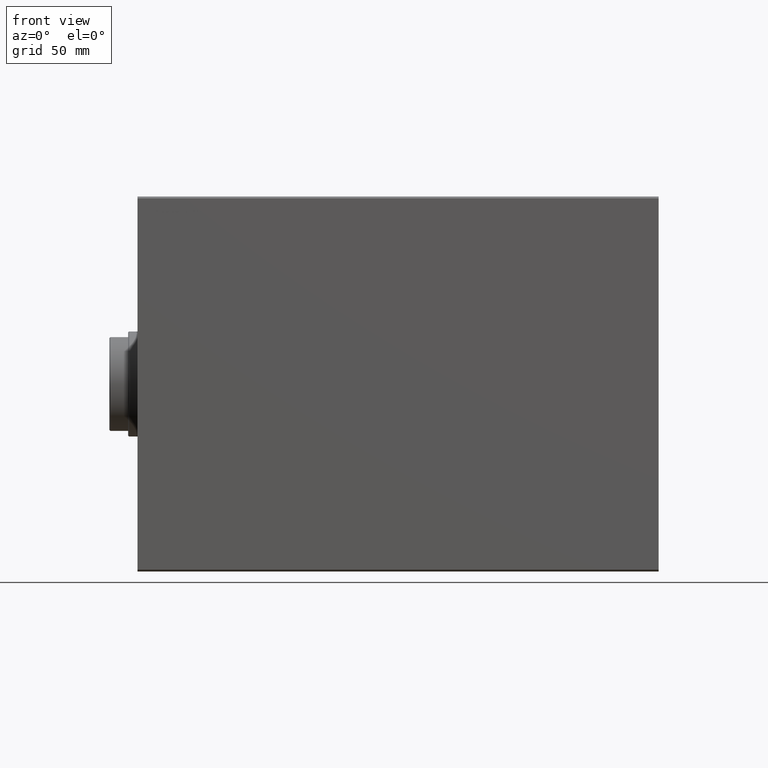
[diagram: clean part render]
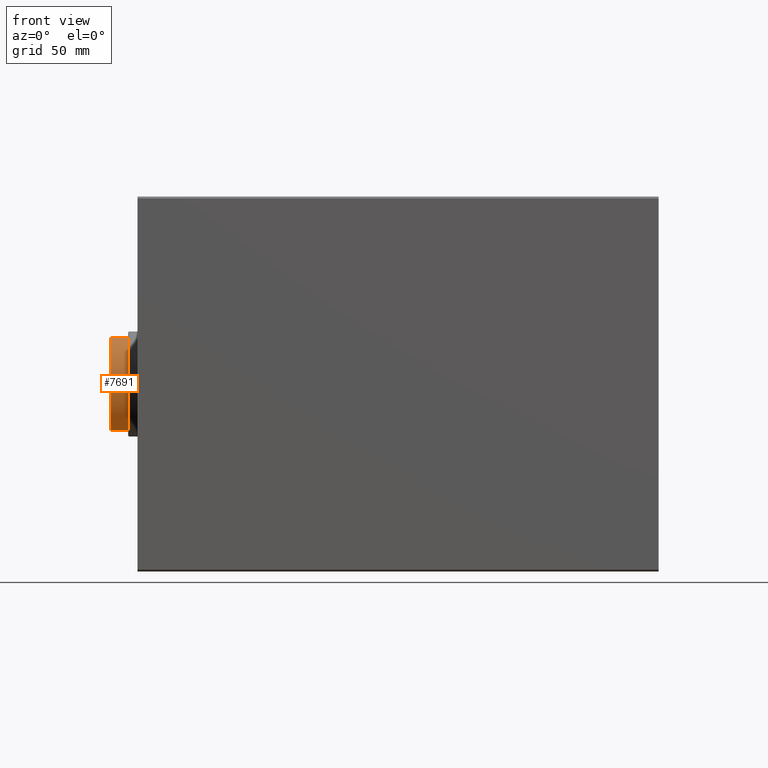
[diagram: same view with one face highlighted and labeled with its STEP entity id]
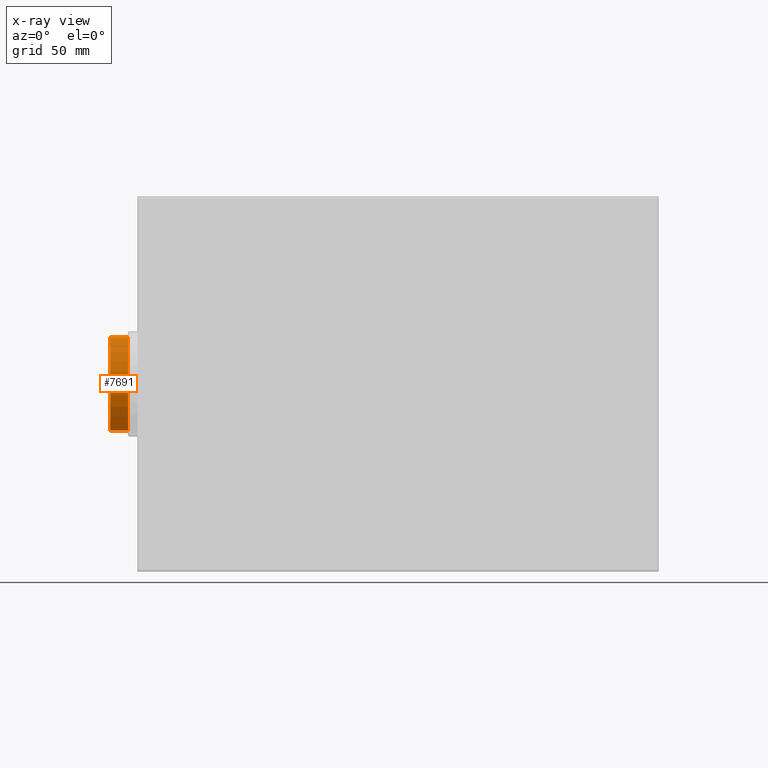
[diagram: x-ray of the same camera — body ghosted, the highlighted face saturated]
A machine part, front view. The second image highlights one B-rep face of the part: STEP entity #7691.
The next image is the same camera in x-ray: the body ghosted, the highlighted face saturated — about 0% of this face is hidden behind the body in this view.
In plain terms, the highlighted cylindrical surface (partial cylindrical patch) has radius 27.5 mm, axis along (1, -0, -0).
Its self-contained STEP definition (entity closure, byte-faithful):
#1121 = LINE ( 'NONE', #7764, #17469 ) ;
#1481 = DIRECTION ( 'NONE',  ( -1.000000000000000000, 0.000000000000000000, 0.000000000000000000 ) ) ;
#1519 = AXIS2_PLACEMENT_3D ( 'NONE', #18414, #15190, #1481 ) ;
#3590 = EDGE_CURVE ( 'NONE', #10840, #14273, #31315, .T. ) ;
#6351 = CARTESIAN_POINT ( 'NONE',  ( -25.00000000000000000, -11.45643923738952275, 259.1999999999999886 ) ) ;
#7691 = ADVANCED_FACE ( 'NONE', ( #7901 ), #22057, .T. ) ;
#7764 = CARTESIAN_POINT ( 'NONE',  ( 25.00000000000000000, -11.45643923738952275, 259.6999999999999886 ) ) ;
#7901 = FACE_OUTER_BOUND ( 'NONE', #38519, .T. ) ;
#10840 = VERTEX_POINT ( 'NONE', #6351 ) ;
#12172 = EDGE_CURVE ( 'NONE', #14273, #43617, #37382, .T. ) ;
#13816 = ORIENTED_EDGE ( 'NONE', *, *, #12172, .T. ) ;
#14273 = VERTEX_POINT ( 'NONE', #28798 ) ;
#15190 = DIRECTION ( 'NONE',  ( -0.000000000000000000, -0.000000000000000000, -1.000000000000000000 ) ) ;
#15406 = AXIS2_PLACEMENT_3D ( 'NONE', #44042, #26925, #26695 ) ;
#15970 = VECTOR ( 'NONE', #17633, 1000.000000000000000 ) ;
#16070 = VERTEX_POINT ( 'NONE', #19677 ) ;
#17469 = VECTOR ( 'NONE', #30058, 1000.000000000000000 ) ;
#17633 = DIRECTION ( 'NONE',  ( -0.000000000000000000, -0.000000000000000000, -1.000000000000000000 ) ) ;
#18414 = CARTESIAN_POINT ( 'NONE',  ( 0.000000000000000000, 0.000000000000000000, 259.6999999999999886 ) ) ;
#18458 = ORIENTED_EDGE ( 'NONE', *, *, #3590, .T. ) ;
#19677 = CARTESIAN_POINT ( 'NONE',  ( 25.00000000000000000, -11.45643923738952275, 259.1999999999999886 ) ) ;
#20687 = CARTESIAN_POINT ( 'NONE',  ( 25.00000000000000000, -11.45643923738951919, 249.6999999999999886 ) ) ;
#22057 = CYLINDRICAL_SURFACE ( 'NONE', #1519, 27.49999999999996803 ) ;
#26695 = DIRECTION ( 'NONE',  ( 1.000000000000000000, 0.000000000000000000, 0.000000000000000000 ) ) ;
#26925 = DIRECTION ( 'NONE',  ( 0.000000000000000000, 0.000000000000000000, 1.000000000000000000 ) ) ;
#27053 = DIRECTION ( 'NONE',  ( 1.000000000000000000, 0.000000000000000000, 0.000000000000000000 ) ) ;
#28412 = ORIENTED_EDGE ( 'NONE', *, *, #32761, .T. ) ;
#28798 = CARTESIAN_POINT ( 'NONE',  ( -25.00000000000000000, -11.45643923738951919, 249.6999999999999886 ) ) ;
#30058 = DIRECTION ( 'NONE',  ( -0.000000000000000000, -0.000000000000000000, -1.000000000000000000 ) ) ;
#31315 = LINE ( 'NONE', #38837, #15970 ) ;
#32761 = EDGE_CURVE ( 'NONE', #16070, #10840, #42825, .T. ) ;
#34552 = CARTESIAN_POINT ( 'NONE',  ( 0.000000000000000000, 0.000000000000000000, 259.1999999999999886 ) ) ;
#37382 = CIRCLE ( 'NONE', #15406, 27.49999999999996803 ) ;
#37697 = AXIS2_PLACEMENT_3D ( 'NONE', #34552, #40512, #27053 ) ;
#38519 = EDGE_LOOP ( 'NONE', ( #41300, #28412, #18458, #13816 ) ) ;
#38837 = CARTESIAN_POINT ( 'NONE',  ( -25.00000000000000000, -11.45643923738952275, 259.6999999999999886 ) ) ;
#40512 = DIRECTION ( 'NONE',  ( 0.000000000000000000, 0.000000000000000000, -1.000000000000000000 ) ) ;
#41300 = ORIENTED_EDGE ( 'NONE', *, *, #43376, .F. ) ;
#42825 = CIRCLE ( 'NONE', #37697, 27.49999999999996803 ) ;
#43376 = EDGE_CURVE ( 'NONE', #16070, #43617, #1121, .T. ) ;
#43617 = VERTEX_POINT ( 'NONE', #20687 ) ;
#44042 = CARTESIAN_POINT ( 'NONE',  ( 0.000000000000000000, 0.000000000000000000, 249.6999999999999886 ) ) ;